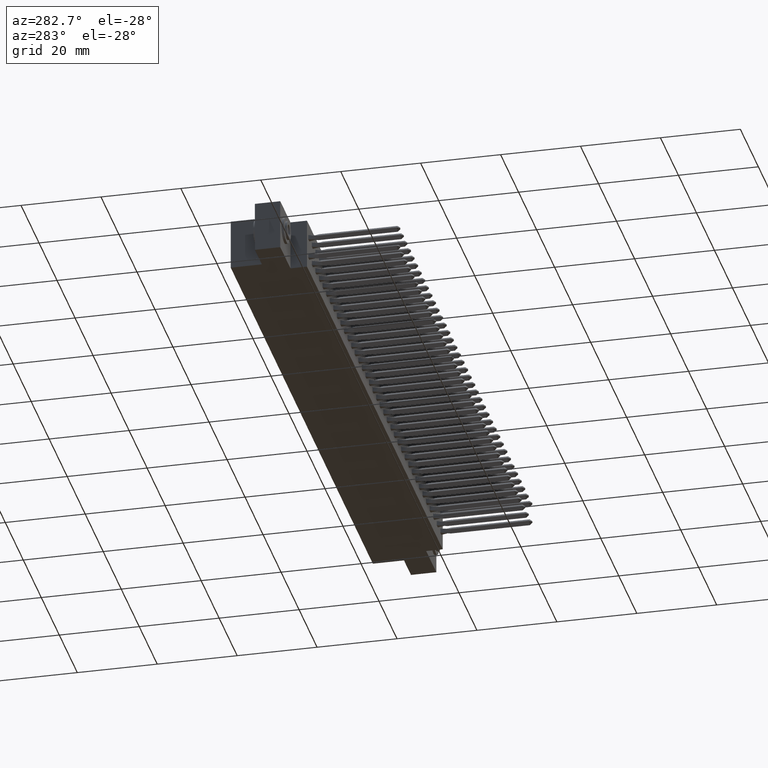
[diagram: clean part render]
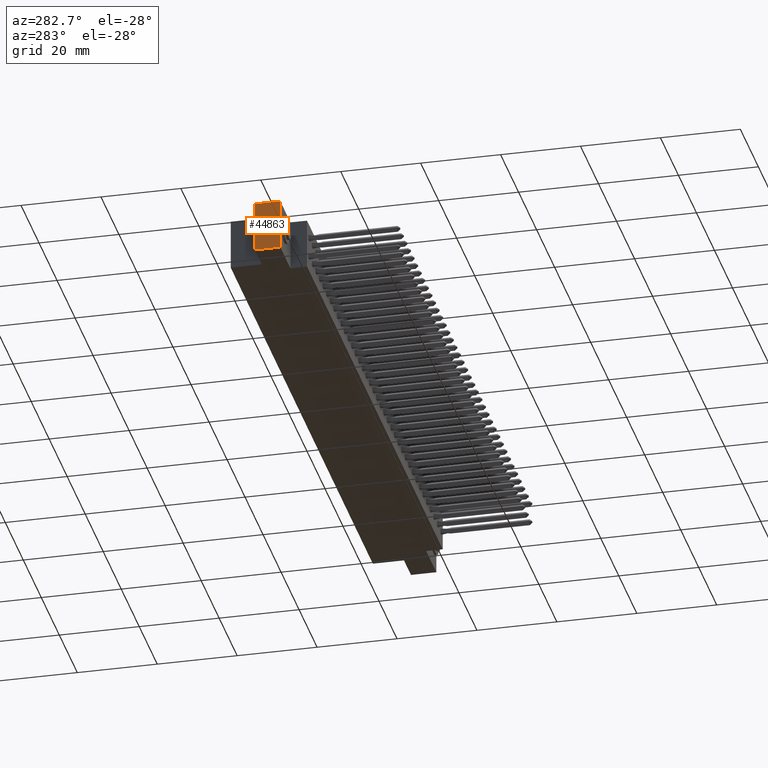
[diagram: same view with one face highlighted and labeled with its STEP entity id]
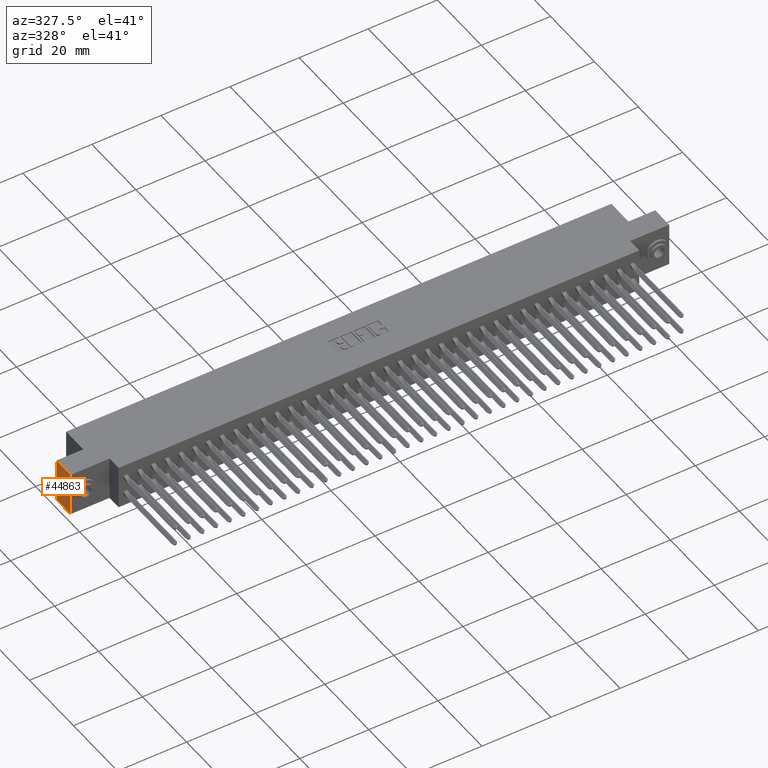
[diagram: same view with one face highlighted and labeled with its STEP entity id]
A machine part, auxiliary view. The second image highlights one B-rep face of the part: STEP entity #44863.
A second angle (auxiliary view) of the same face is appended — the face is thin or edge-on in the first view.
In plain terms, the highlighted planar face has unit normal (1, 0, 0).
Its self-contained STEP definition (entity closure, byte-faithful):
#144 = VECTOR ( 'NONE', #2580, 39.37007874015748100 ) ;
#1109 = DIRECTION ( 'NONE',  ( 1.000000000000000000, -0.0000000000000000000, 0.0000000000000000000 ) ) ;
#1574 = EDGE_CURVE ( 'NONE', #6583, #10742, #50435, .T. ) ;
#1657 = CARTESIAN_POINT ( 'NONE',  ( 2.731847993664263200E-016, 0.1630000000000000100, 3.951581205970576600E-015 ) ) ;
#2193 = DIRECTION ( 'NONE',  ( -0.0000000000000000000, -1.000000000000000000, -0.0000000000000000000 ) ) ;
#2454 = DIRECTION ( 'NONE',  ( 0.0000000000000000000, 0.0000000000000000000, 1.000000000000000000 ) ) ;
#2580 = DIRECTION ( 'NONE',  ( -5.463695987328480100E-016, -0.0000000000000000000, -1.000000000000000000 ) ) ;
#2822 = CARTESIAN_POINT ( 'NONE',  ( 0.0000000000000000000, 0.4129999999999999200, -0.5000000000000000000 ) ) ;
#4554 = FACE_OUTER_BOUND ( 'NONE', #9797, .T. ) ;
#5562 = CARTESIAN_POINT ( 'NONE',  ( 0.0000000000000000000, 0.4129999999999999200, 0.0000000000000000000 ) ) ;
#5870 = ORIENTED_EDGE ( 'NONE', *, *, #38051, .F. ) ;
#6583 = VERTEX_POINT ( 'NONE', #2822 ) ;
#7508 = LINE ( 'NONE', #15789, #15621 ) ;
#9797 = EDGE_LOOP ( 'NONE', ( #5870, #37492, #48400, #34017 ) ) ;
#10742 = VERTEX_POINT ( 'NONE', #5562 ) ;
#14043 = EDGE_CURVE ( 'NONE', #10742, #30320, #20168, .T. ) ;
#15621 = VECTOR ( 'NONE', #33212, 39.37007874015748100 ) ;
#15789 = CARTESIAN_POINT ( 'NONE',  ( 0.0000000000000000000, 0.7199999999999999700, -0.5000000000000000000 ) ) ;
#18540 = VECTOR ( 'NONE', #2454, 39.37007874015748100 ) ;
#20168 = LINE ( 'NONE', #28319, #22889 ) ;
#22889 = VECTOR ( 'NONE', #2193, 39.37007874015748100 ) ;
#24138 = CARTESIAN_POINT ( 'NONE',  ( 0.0000000000000000000, 0.1630000000000000100, -0.5000000000000002200 ) ) ;
#26331 = EDGE_CURVE ( 'NONE', #6583, #32307, #7508, .T. ) ;
#28319 = CARTESIAN_POINT ( 'NONE',  ( 0.0000000000000000000, 0.7199999999999999700, 0.0000000000000000000 ) ) ;
#30320 = VERTEX_POINT ( 'NONE', #1657 ) ;
#32307 = VERTEX_POINT ( 'NONE', #39810 ) ;
#33212 = DIRECTION ( 'NONE',  ( -0.0000000000000000000, -1.000000000000000000, -0.0000000000000000000 ) ) ;
#34017 = ORIENTED_EDGE ( 'NONE', *, *, #26331, .T. ) ;
#37492 = ORIENTED_EDGE ( 'NONE', *, *, #14043, .F. ) ;
#38051 = EDGE_CURVE ( 'NONE', #30320, #32307, #51707, .T. ) ;
#39713 = DIRECTION ( 'NONE',  ( 0.0000000000000000000, 0.0000000000000000000, -1.000000000000000000 ) ) ;
#39810 = CARTESIAN_POINT ( 'NONE',  ( 0.0000000000000000000, 0.1630000000000000100, -0.5000000000000000000 ) ) ;
#43700 = PLANE ( 'NONE',  #47064 ) ;
#44863 = ADVANCED_FACE ( 'NONE', ( #4554 ), #43700, .F. ) ;
#47064 = AXIS2_PLACEMENT_3D ( 'NONE', #52479, #1109, #39713 ) ;
#48400 = ORIENTED_EDGE ( 'NONE', *, *, #1574, .F. ) ;
#50435 = LINE ( 'NONE', #50974, #18540 ) ;
#50974 = CARTESIAN_POINT ( 'NONE',  ( 0.0000000000000000000, 0.4129999999999999200, -0.5000000000000000000 ) ) ;
#51707 = LINE ( 'NONE', #24138, #144 ) ;
#52479 = CARTESIAN_POINT ( 'NONE',  ( 0.0000000000000000000, 0.7199999999999999700, 0.0000000000000000000 ) ) ;